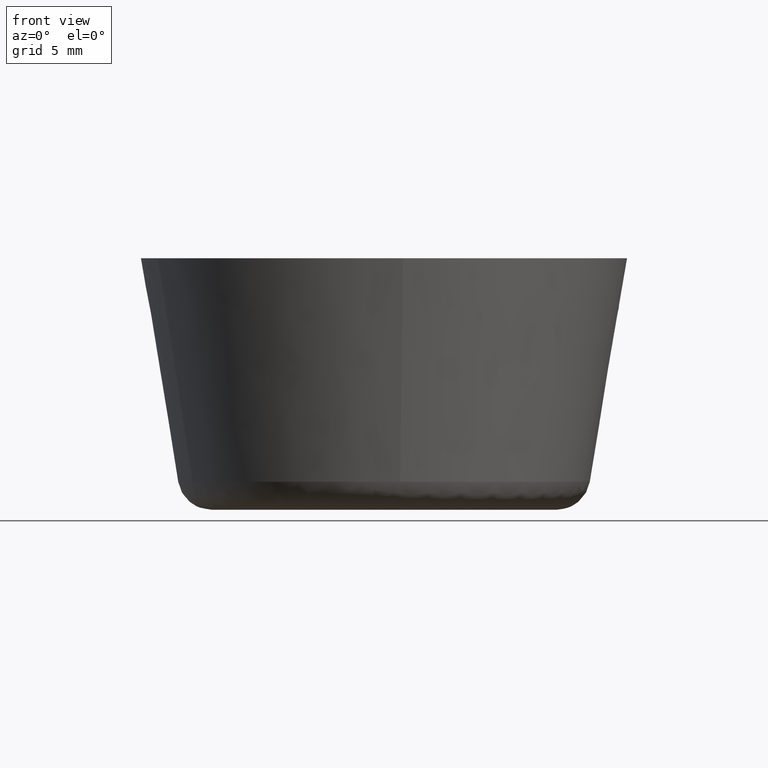
[diagram: clean part render]
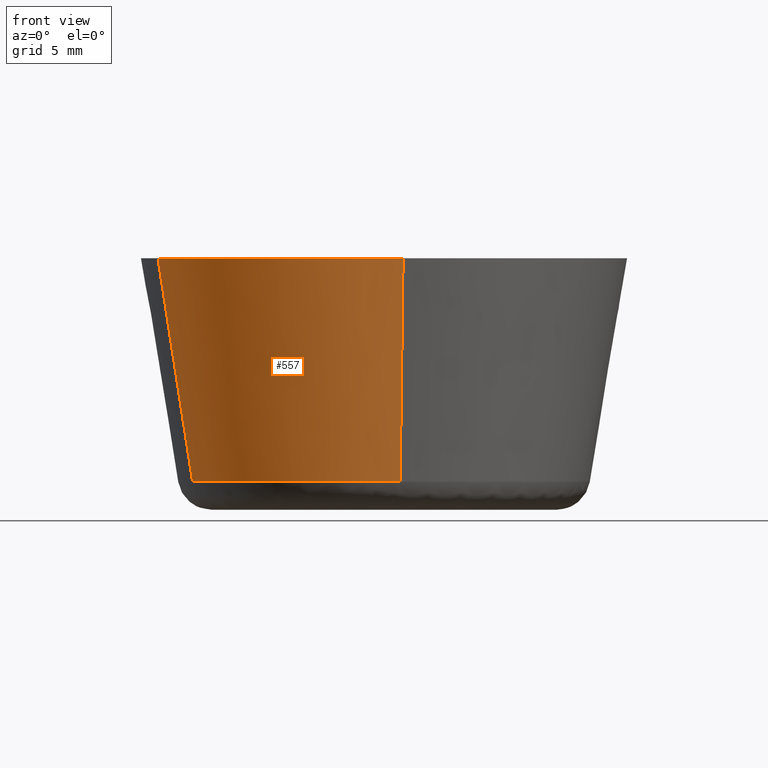
[diagram: same view with one face highlighted and labeled with its STEP entity id]
A machine part, front view. The second image highlights one B-rep face of the part: STEP entity #557.
In plain terms, the highlighted face is a freeform B-spline surface patch.
Its self-contained STEP definition (entity closure, byte-faithful):
#493=CARTESIAN_POINT('',(-11.365730297542671,-4.496869793268500,1.337981783939825));
#494=CARTESIAN_POINT('',(-8.043460319483296,-12.893827295300222,1.337981783939824));
#495=CARTESIAN_POINT('',(0.959005315685714,-12.185317884182441,1.337981783939825));
#496=CARTESIAN_POINT('',(-13.535966681475697,-5.355527370359759,15.341550455401508));
#497=CARTESIAN_POINT('',(-9.579323812728282,-15.355847103253913,15.341550455401507));
#498=CARTESIAN_POINT('',(1.142123177362962,-14.512050925504051,15.341550455401510));
#506=(BOUNDED_SURFACE()B_SPLINE_SURFACE(2,1,((#493,#496),(#494,#497),(#495,#498)),.UNSPECIFIED.,.F.,.F.,.U.)B_SPLINE_SURFACE_WITH_KNOTS((3,3),(2,2),(0.0,19.163445428637740),(0.0,14.196730409963630),.UNSPECIFIED.)GEOMETRIC_REPRESENTATION_ITEM()RATIONAL_B_SPLINE_SURFACE(((0.906274169979695,0.906274169979695),(0.765685424949238,0.765685424949238),(1.0,1.0)))REPRESENTATION_ITEM('')SURFACE());
#507=CARTESIAN_POINT('',(0.963356490954957,-12.240683417934740,1.671199331354177));
#508=VERTEX_POINT('',#507);
#509=CARTESIAN_POINT('',(-11.417373104371830,-4.517297106049995,1.671198227471124));
#510=VERTEX_POINT('',#509);
#511=CARTESIAN_POINT('',(0.963356490954957,-12.240683417934740,1.671199331354177));
#512=CARTESIAN_POINT('',(0.482421807742091,-12.278533562234736,1.671199302001417));
#513=CARTESIAN_POINT('',(-1.043882E-009,-12.278533568183651,1.671199271037711));
#514=CARTESIAN_POINT('',(-8.346630969497054,-12.278533671109038,1.671198735318508));
#515=CARTESIAN_POINT('',(-11.417373104371828,-4.517297106049995,1.671198227471124));
#523=(BOUNDED_CURVE()B_SPLINE_CURVE(2,(#511,#512,#513,#514,#515),.UNSPECIFIED.,.F.,.U.)B_SPLINE_CURVE_WITH_KNOTS((3,2,3),(0.736331386741492,0.750000000000000,0.937532612485893),.UNSPECIFIED.)CURVE()GEOMETRIC_REPRESENTATION_ITEM()RATIONAL_B_SPLINE_CURVE((0.969723535874225,0.983986223463997,1.0,0.780291877986044,0.890203260817260))REPRESENTATION_ITEM(''));
#524=EDGE_CURVE('',#508,#510,#523,.T.);
#525=ORIENTED_EDGE('',*,*,#524,.F.);
#526=CARTESIAN_POINT('',(1.137648527288524,-14.455301384026660,14.999996332707161));
#527=VERTEX_POINT('',#526);
#528=CARTESIAN_POINT('',(0.963356490954957,-12.240683417934740,1.671199331354177));
#529=CARTESIAN_POINT('',(1.137648527288524,-14.455301384026660,14.999996332707161));
#530=QUASI_UNIFORM_CURVE('',1,(#528,#529),.UNSPECIFIED.,.F.,.U.);
#531=EDGE_CURVE('',#508,#527,#530,.T.);
#532=ORIENTED_EDGE('',*,*,#531,.T.);
#533=CARTESIAN_POINT('',(-13.483035349738991,-5.334579493426175,14.999995989106999));
#534=VERTEX_POINT('',#533);
#535=CARTESIAN_POINT('',(1.137648527288524,-14.455301384026654,14.999996332707154));
#536=CARTESIAN_POINT('',(0.569702345766286,-14.499999400329264,14.999996323570674));
#537=CARTESIAN_POINT('',(-0.000000011370667,-14.499999410522481,14.999996313932771));
#538=CARTESIAN_POINT('',(-9.856725876422109,-14.499999586880797,14.999996147182127));
#539=CARTESIAN_POINT('',(-13.483035349738994,-5.334579493426175,14.999995989106997));
#547=(BOUNDED_CURVE()B_SPLINE_CURVE(2,(#535,#536,#537,#538,#539),.UNSPECIFIED.,.F.,.U.)B_SPLINE_CURVE_WITH_KNOTS((3,2,3),(0.736331399213855,0.750000000000000,0.937532605533869),.UNSPECIFIED.)CURVE()GEOMETRIC_REPRESENTATION_ITEM()RATIONAL_B_SPLINE_CURVE((0.969723561903117,0.983986238076280,1.0,0.780291886130846,0.890203252668208))REPRESENTATION_ITEM(''));
#548=EDGE_CURVE('',#527,#534,#547,.T.);
#549=ORIENTED_EDGE('',*,*,#548,.T.);
#550=CARTESIAN_POINT('',(-11.417373104371830,-4.517297106049995,1.671198227471124));
#551=CARTESIAN_POINT('',(-13.483035349738991,-5.334579493426175,14.999995989106999));
#552=QUASI_UNIFORM_CURVE('',1,(#550,#551),.UNSPECIFIED.,.F.,.U.);
#553=EDGE_CURVE('',#510,#534,#552,.T.);
#554=ORIENTED_EDGE('',*,*,#553,.F.);
#555=EDGE_LOOP('',(#525,#532,#549,#554));
#556=FACE_OUTER_BOUND('',#555,.T.);
#557=ADVANCED_FACE('',(#556),#506,.T.);